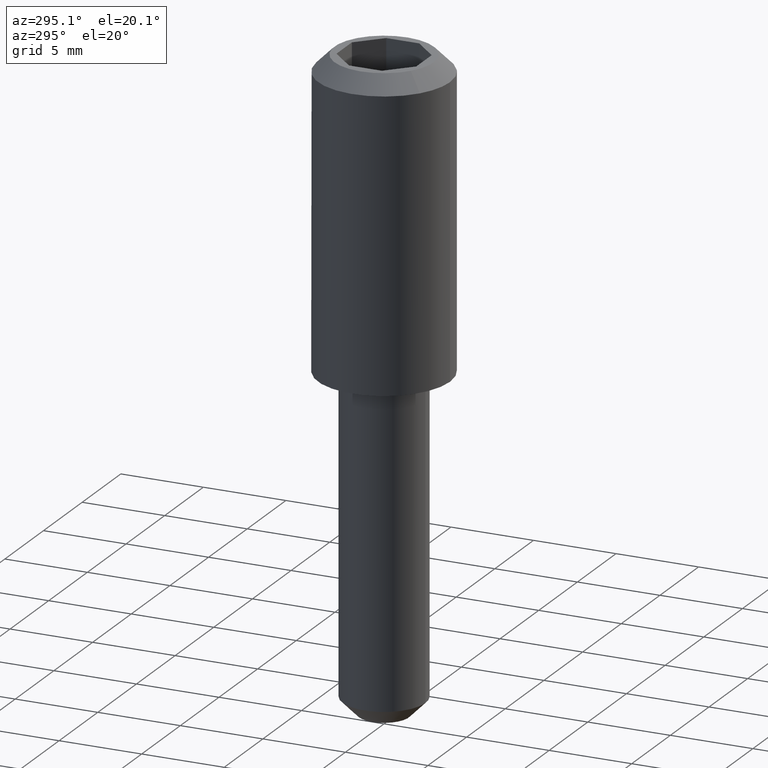
[diagram: clean part render]
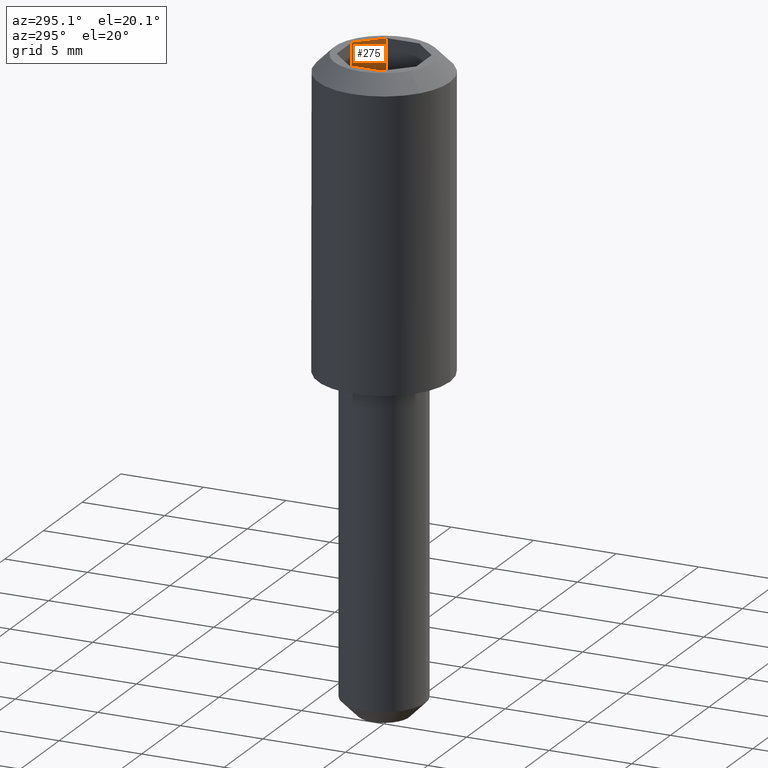
[diagram: same view with one face highlighted and labeled with its STEP entity id]
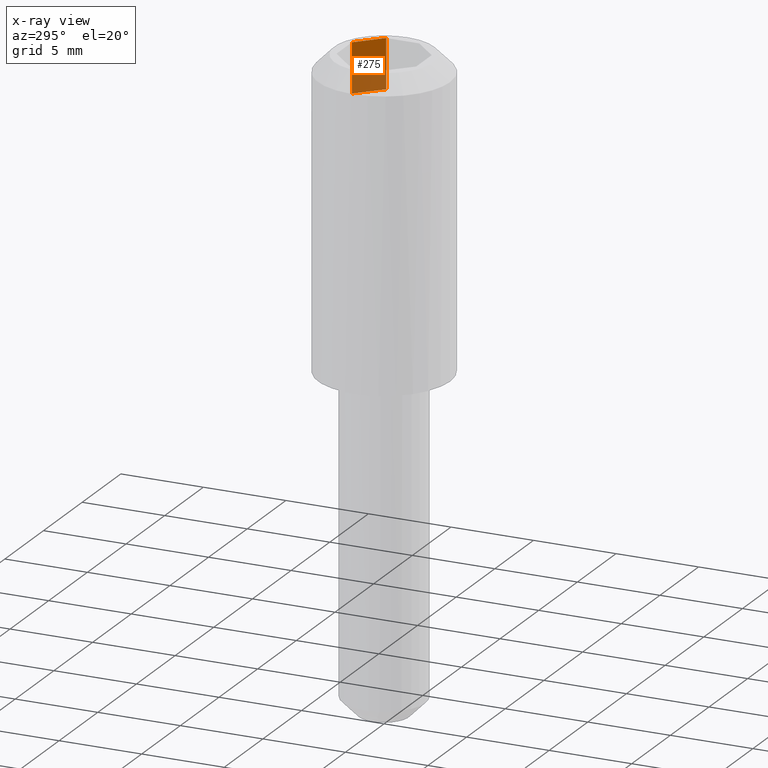
[diagram: x-ray of the same camera — body ghosted, the highlighted face saturated]
A machine part, auxiliary view. The second image highlights one B-rep face of the part: STEP entity #275.
The next image is the same camera in x-ray: the body ghosted, the highlighted face saturated — about 44% of this face is hidden behind the body in this view.
In plain terms, the highlighted planar face has unit normal (-0.7071, -0.7071, 0).
Its self-contained STEP definition (entity closure, byte-faithful):
#25=PLANE('',#322);
#43=FACE_OUTER_BOUND('',#61,.T.);
#61=EDGE_LOOP('',(#241,#242,#243,#244));
#75=LINE('',#444,#103);
#87=LINE('',#469,#115);
#88=LINE('',#472,#116);
#89=LINE('',#473,#117);
#103=VECTOR('',#364,2.00000000000001);
#115=VECTOR('',#390,3.);
#116=VECTOR('',#393,2.00000000000001);
#117=VECTOR('',#394,3.);
#143=VERTEX_POINT('',#441);
#144=VERTEX_POINT('',#443);
#150=VERTEX_POINT('',#467);
#151=VERTEX_POINT('',#471);
#171=EDGE_CURVE('',#143,#144,#75,.T.);
#183=EDGE_CURVE('',#150,#143,#87,.T.);
#184=EDGE_CURVE('',#150,#151,#88,.T.);
#185=EDGE_CURVE('',#151,#144,#89,.T.);
#241=ORIENTED_EDGE('',*,*,#171,.F.);
#242=ORIENTED_EDGE('',*,*,#183,.F.);
#243=ORIENTED_EDGE('',*,*,#184,.T.);
#244=ORIENTED_EDGE('',*,*,#185,.T.);
#275=ADVANCED_FACE('',(#43),#25,.T.);
#322=AXIS2_PLACEMENT_3D('',#470,#391,#392);
#364=DIRECTION('',(0.707106781186547,-0.707106781186548,0.));
#390=DIRECTION('',(0.,0.,1.));
#391=DIRECTION('center_axis',(-0.707106781186547,-0.707106781186548,8.659561E-17));
#392=DIRECTION('ref_axis',(1.22464686103971E-16,0.,1.));
#393=DIRECTION('',(0.707106781186548,-0.707106781186547,0.));
#394=DIRECTION('',(0.,0.,1.));
#441=CARTESIAN_POINT('',(1.,2.4142135623731,18.5));
#443=CARTESIAN_POINT('',(2.41421356237311,1.,18.5));
#444=CARTESIAN_POINT('',(1.00000000000001,2.4142135623731,18.5));
#467=CARTESIAN_POINT('',(1.,2.4142135623731,15.5));
#469=CARTESIAN_POINT('',(1.,2.4142135623731,15.5));
#470=CARTESIAN_POINT('Origin',(2.48492424049177,0.929289321881348,18.65));
#471=CARTESIAN_POINT('',(2.41421356237311,1.,15.5));
#472=CARTESIAN_POINT('',(1.,2.4142135623731,15.5));
#473=CARTESIAN_POINT('',(2.41421356237311,1.,15.5));